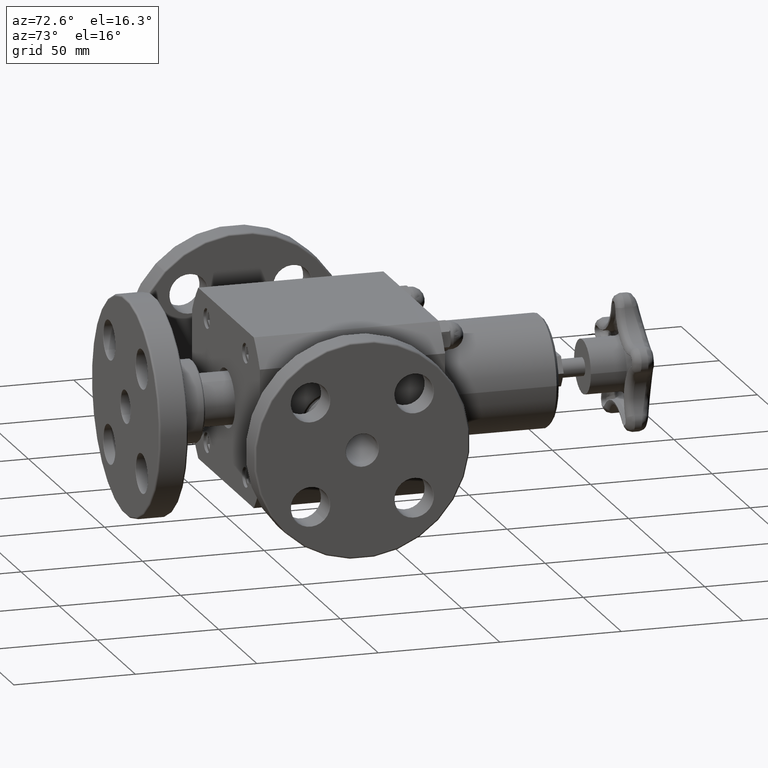
[diagram: clean part render]
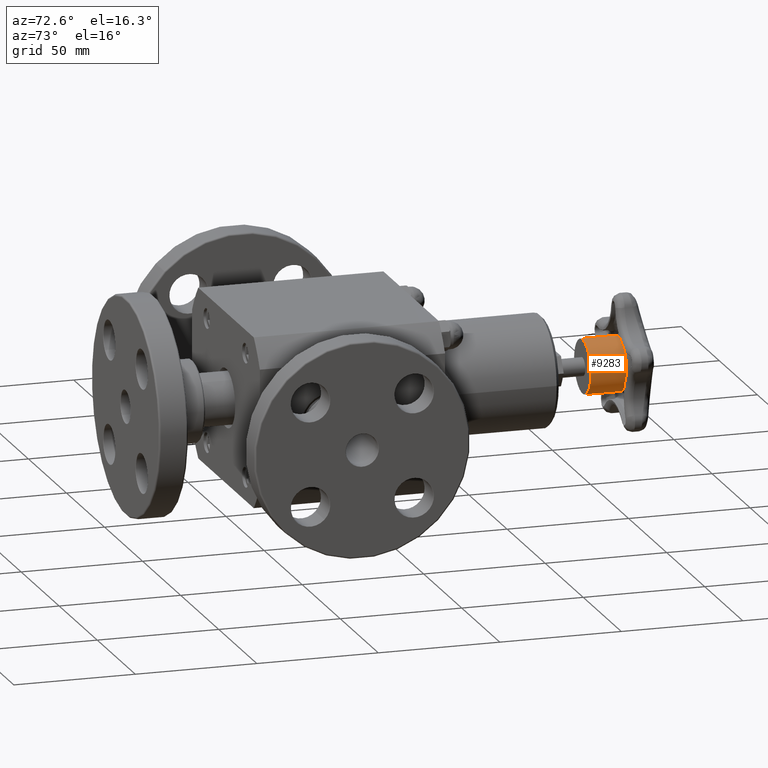
[diagram: same view with one face highlighted and labeled with its STEP entity id]
A machine part, auxiliary view. The second image highlights one B-rep face of the part: STEP entity #9283.
In plain terms, the highlighted cylindrical surface (bore or boss wall) has radius 11.049 mm, axis along (0, -1, -0).
Its self-contained STEP definition (entity closure, byte-faithful):
#240=CARTESIAN_POINT('',(0.434999999999996,5.775500000000002,-5.510831E-017));
#241=VERTEX_POINT('',#240);
#242=CARTESIAN_POINT('',(-3.859947E-015,5.775500000000001,-5.510831E-017));
#243=DIRECTION('',(0.0,-1.0,0.0));
#244=DIRECTION('',(1.0,0.0,0.0));
#245=AXIS2_PLACEMENT_3D('',#242,#243,#244);
#246=CIRCLE('',#245,0.435000000000000);
#247=EDGE_CURVE('',#241,#241,#246,.T.);
#8948=CARTESIAN_POINT('',(0.434999999999996,6.355500000000001,-4.261034E-016));
#8949=VERTEX_POINT('',#8948);
#8950=CARTESIAN_POINT('',(-4.337477E-015,6.355500000000001,-5.510831E-017));
#8951=DIRECTION('',(0.0,1.0,0.0));
#8952=DIRECTION('',(-1.0,0.0,0.0));
#8953=AXIS2_PLACEMENT_3D('',#8950,#8951,#8952);
#8954=CIRCLE('',#8953,0.435000000000000);
#8955=EDGE_CURVE('',#8949,#8949,#8954,.T.);
#9272=CARTESIAN_POINT('',(-4.065779E-015,6.025500000000001,-5.510831E-017));
#9273=DIRECTION('',(8.233276E-016,-1.0,-9.322169E-032));
#9274=DIRECTION('',(1.0,0.0,0.0));
#9275=AXIS2_PLACEMENT_3D('',#9272,#9273,#9274);
#9276=CYLINDRICAL_SURFACE('',#9275,0.435000000000000);
#9277=ORIENTED_EDGE('',*,*,#247,.F.);
#9278=EDGE_LOOP('',(#9277));
#9279=FACE_OUTER_BOUND('',#9278,.T.);
#9280=ORIENTED_EDGE('',*,*,#8955,.F.);
#9281=EDGE_LOOP('',(#9280));
#9282=FACE_BOUND('',#9281,.T.);
#9283=ADVANCED_FACE('',(#9279,#9282),#9276,.T.);